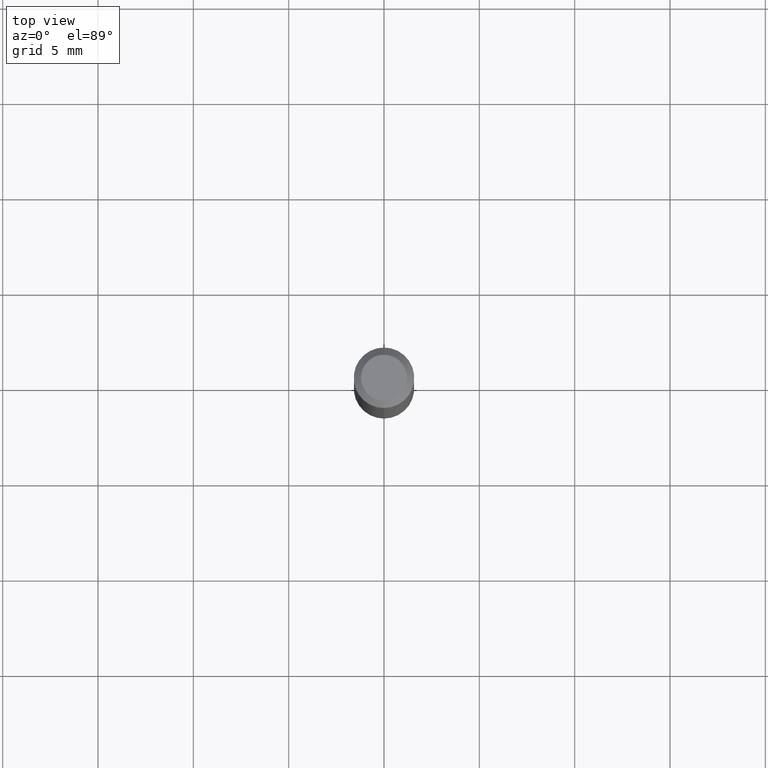
[diagram: clean part render]
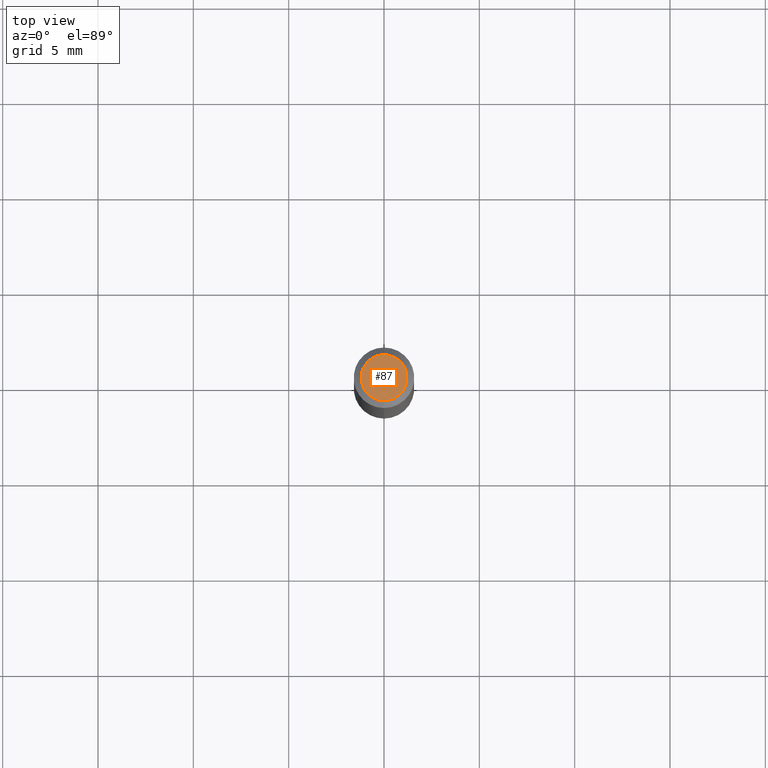
[diagram: same view with one face highlighted and labeled with its STEP entity id]
A machine part, top view. The second image highlights one B-rep face of the part: STEP entity #87.
In plain terms, the highlighted planar face has unit normal (0, -0, -1).
Its self-contained STEP definition (entity closure, byte-faithful):
#26 = AXIS2_PLACEMENT_3D ( 'NONE', #326, #281, #255 ) ;
#69 = EDGE_LOOP ( 'NONE', ( #436, #390 ) ) ;
#74 = DIRECTION ( 'NONE',  ( -6.982962677686266711E-15, -1.000000000000000000, 3.491485163084823161E-15 ) ) ;
#84 = CARTESIAN_POINT ( 'NONE',  ( -3.773273898774340269E-16, -0.04749999999999999362, 4.053343695858956261E-16 ) ) ;
#87 = ADVANCED_FACE ( 'NONE', ( #357 ), #453, .F. ) ;
#121 = CARTESIAN_POINT ( 'NONE',  ( 3.840629472727447874E-16, 0.04749999999999999362, 7.364327909283752044E-17 ) ) ;
#184 = EDGE_CURVE ( 'NONE', #332, #437, #263, .T. ) ;
#231 = AXIS2_PLACEMENT_3D ( 'NONE', #507, #258, #74 ) ;
#232 = AXIS2_PLACEMENT_3D ( 'NONE', #475, #268, #509 ) ;
#255 = DIRECTION ( 'NONE',  ( 6.982962677686265922E-15, 1.000000000000000000, -3.491485163084821978E-15 ) ) ;
#258 = DIRECTION ( 'NONE',  ( -2.445466135731446828E-29, 3.491485163084822372E-15, 1.000000000000000000 ) ) ;
#263 = CIRCLE ( 'NONE', #231, 0.04749999999999999362 ) ;
#268 = DIRECTION ( 'NONE',  ( -2.445466135731446828E-29, 3.491485163084822372E-15, 1.000000000000000000 ) ) ;
#280 = CIRCLE ( 'NONE', #232, 0.04749999999999999362 ) ;
#281 = DIRECTION ( 'NONE',  ( 2.445466135731446548E-29, -3.491485163084821978E-15, -1.000000000000000000 ) ) ;
#326 = CARTESIAN_POINT ( 'NONE',  ( 3.316907271900976096E-16, 0.04749999999999999362, -4.610113307684576619E-17 ) ) ;
#332 = VERTEX_POINT ( 'NONE', #84 ) ;
#350 = EDGE_CURVE ( 'NONE', #437, #332, #280, .T. ) ;
#357 = FACE_OUTER_BOUND ( 'NONE', #69, .T. ) ;
#390 = ORIENTED_EDGE ( 'NONE', *, *, #184, .T. ) ;
#436 = ORIENTED_EDGE ( 'NONE', *, *, #350, .T. ) ;
#437 = VERTEX_POINT ( 'NONE', #121 ) ;
#453 = PLANE ( 'NONE',  #26 ) ;
#475 = CARTESIAN_POINT ( 'NONE',  ( -5.856618098080579680E-45, 8.361716769055255844E-31, 2.394888243393665486E-16 ) ) ;
#507 = CARTESIAN_POINT ( 'NONE',  ( -5.856618098080579680E-45, 8.361716769055255844E-31, 2.394888243393665486E-16 ) ) ;
#509 = DIRECTION ( 'NONE',  ( -6.982962677686266711E-15, -1.000000000000000000, 3.491485163084823161E-15 ) ) ;